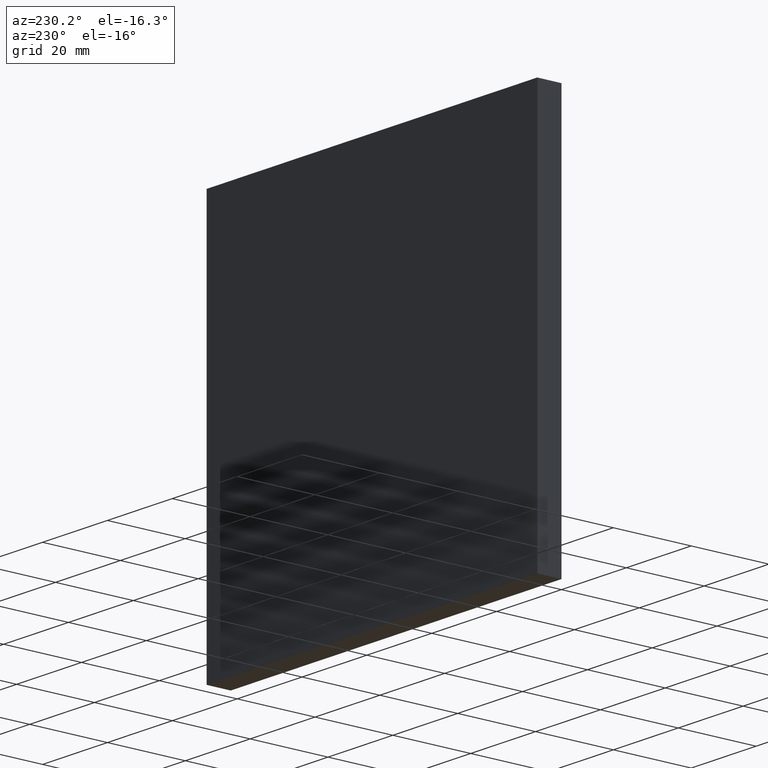
[diagram: clean part render]
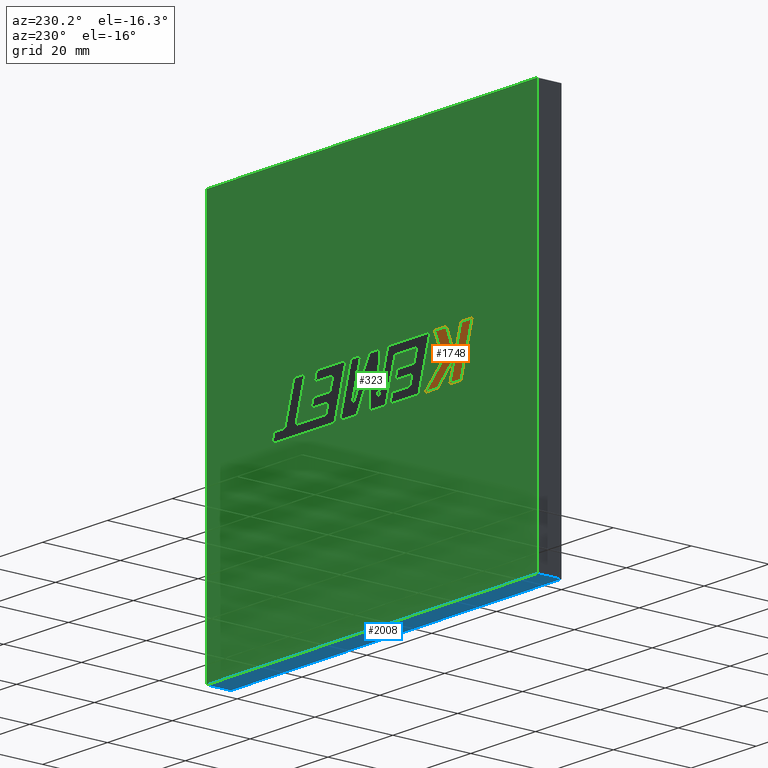
[diagram: same view with three faces highlighted in distinct colors, each labeled with its STEP entity id]
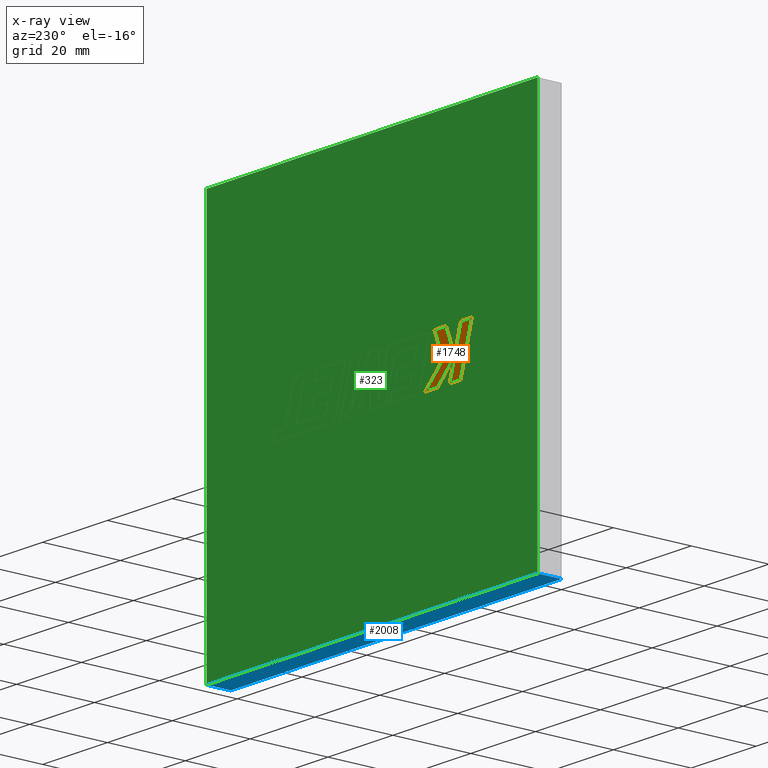
[diagram: x-ray of the same camera — body ghosted, the three highlighted faces saturated]
A machine part, auxiliary view with three faces highlighted in distinct colors.
The next image is the same camera in x-ray (body ghosted, the three faces saturated) — at least one of them is partly hidden behind the body in this view.
Their STEP definitions:

[orange] entity #1748 — the highlighted planar face has unit normal (0, -1, 0).
#10 = LINE ( 'NONE', #1301, #1926 ) ;
#30 = DIRECTION ( 'NONE',  ( -0.2762033010252004095, 0.000000000000000000, 0.9610992334315862085 ) ) ;
#41 = VERTEX_POINT ( 'NONE', #2017 ) ;
#48 = DIRECTION ( 'NONE',  ( -0.7059037656364540725, 0.000000000000000000, 0.7083077534943933440 ) ) ;
#52 = ORIENTED_EDGE ( 'NONE', *, *, #1530, .T. ) ;
#59 = LINE ( 'NONE', #225, #1960 ) ;
#90 = CARTESIAN_POINT ( 'NONE',  ( 28.05290591878565110, 6.204999999999999183, -44.88000000000000256 ) ) ;
#94 = VERTEX_POINT ( 'NONE', #898 ) ;
#100 = ORIENTED_EDGE ( 'NONE', *, *, #146, .T. ) ;
#107 = VECTOR ( 'NONE', #1724, 1000.000000000000000 ) ;
#145 = CARTESIAN_POINT ( 'NONE',  ( 23.53380719853199565, 6.204999999999999183, -44.88000000000000256 ) ) ;
#146 = EDGE_CURVE ( 'NONE', #374, #1560, #217, .T. ) ;
#159 = CARTESIAN_POINT ( 'NONE',  ( 25.41641557051689304, 6.204999999999999183, -51.44829235134181289 ) ) ;
#162 = CARTESIAN_POINT ( 'NONE',  ( 20.09399999999999764, 6.204999999999999183, -44.88000000000000256 ) ) ;
#217 = LINE ( 'NONE', #554, #752 ) ;
#225 = CARTESIAN_POINT ( 'NONE',  ( 25.53614068913826785, 6.204999999999999183, -51.81831834092456290 ) ) ;
#267 = LINE ( 'NONE', #1544, #1247 ) ;
#268 = VERTEX_POINT ( 'NONE', #1861 ) ;
#319 = CARTESIAN_POINT ( 'NONE',  ( 31.73359783930099098, 6.204999999999999183, -44.88000000000000256 ) ) ;
#366 = DIRECTION ( 'NONE',  ( 0.000000000000000000, 0.000000000000000000, -1.000000000000000000 ) ) ;
#374 = VERTEX_POINT ( 'NONE', #1927 ) ;
#474 = ORIENTED_EDGE ( 'NONE', *, *, #2065, .T. ) ;
#490 = LINE ( 'NONE', #1585, #1817 ) ;
#554 = CARTESIAN_POINT ( 'NONE',  ( 29.01100104555485615, 6.204999999999999183, -51.44829235134198342 ) ) ;
#583 = DIRECTION ( 'NONE',  ( 0.2755265765475171658, 0.000000000000000000, -0.9612934544747536725 ) ) ;
#588 = EDGE_CURVE ( 'NONE', #268, #961, #955, .T. ) ;
#589 = CARTESIAN_POINT ( 'NONE',  ( 25.53614068913826785, 6.204999999999999183, -51.81831834092456290 ) ) ;
#624 = CARTESIAN_POINT ( 'NONE',  ( 23.57044198812232594, 6.204999999999999183, -56.97690730506114676 ) ) ;
#647 = LINE ( 'NONE', #624, #1730 ) ;
#667 = VERTEX_POINT ( 'NONE', #162 ) ;
#671 = VECTOR ( 'NONE', #30, 1000.000000000000114 ) ;
#680 = DIRECTION ( 'NONE',  ( -0.3829140317376942271, -0.000000000000000000, -0.9237839814038690811 ) ) ;
#752 = VECTOR ( 'NONE', #680, 1000.000000000000114 ) ;
#784 = EDGE_CURVE ( 'NONE', #1545, #667, #1935, .T. ) ;
#789 = DIRECTION ( 'NONE',  ( -1.000000000000000000, -0.000000000000000000, -0.000000000000000000 ) ) ;
#821 = ORIENTED_EDGE ( 'NONE', *, *, #1829, .T. ) ;
#825 = DIRECTION ( 'NONE',  ( 0.000000000000000000, -1.000000000000000000, 0.000000000000000000 ) ) ;
#898 = CARTESIAN_POINT ( 'NONE',  ( 34.65820087879249911, 6.204999999999999183, -56.97690730506114676 ) ) ;
#915 = LINE ( 'NONE', #90, #1922 ) ;
#955 = LINE ( 'NONE', #1229, #1130 ) ;
#956 = DIRECTION ( 'NONE',  ( -1.000000000000000000, -0.000000000000000000, -0.000000000000000000 ) ) ;
#961 = VERTEX_POINT ( 'NONE', #159 ) ;
#1081 = ORIENTED_EDGE ( 'NONE', *, *, #2031, .T. ) ;
#1103 = CARTESIAN_POINT ( 'NONE',  ( 23.57044198812232594, 6.204999999999999183, -56.97690730506114676 ) ) ;
#1130 = VECTOR ( 'NONE', #583, 1000.000000000000114 ) ;
#1137 = ORIENTED_EDGE ( 'NONE', *, *, #1711, .T. ) ;
#1217 = AXIS2_PLACEMENT_3D ( 'NONE', #1611, #825, #366 ) ;
#1222 = DIRECTION ( 'NONE',  ( 0.2755520632520634394, 0.000000000000000000, -0.9612861490927302466 ) ) ;
#1229 = CARTESIAN_POINT ( 'NONE',  ( 25.41641557051689304, 6.204999999999999183, -51.44829235134181289 ) ) ;
#1247 = VECTOR ( 'NONE', #1222, 1000.000000000000114 ) ;
#1256 = EDGE_LOOP ( 'NONE', ( #1687, #1348, #1267, #821, #52, #100, #474, #1081, #1137, #1879, #1338 ) ) ;
#1267 = ORIENTED_EDGE ( 'NONE', *, *, #588, .T. ) ;
#1301 = CARTESIAN_POINT ( 'NONE',  ( 30.67722146538236672, 6.204999999999999183, -56.97690730506114676 ) ) ;
#1338 = ORIENTED_EDGE ( 'NONE', *, *, #1552, .T. ) ;
#1348 = ORIENTED_EDGE ( 'NONE', *, *, #1575, .T. ) ;
#1411 = VERTEX_POINT ( 'NONE', #1672 ) ;
#1418 = CARTESIAN_POINT ( 'NONE',  ( 29.01100104555485615, 6.204999999999999183, -51.44829235134198342 ) ) ;
#1502 = VERTEX_POINT ( 'NONE', #589 ) ;
#1530 = EDGE_CURVE ( 'NONE', #1411, #374, #1566, .T. ) ;
#1544 = CARTESIAN_POINT ( 'NONE',  ( 27.01484693480585264, 6.204999999999999183, -56.97690730506114676 ) ) ;
#1545 = VERTEX_POINT ( 'NONE', #1103 ) ;
#1552 = EDGE_CURVE ( 'NONE', #41, #1545, #647, .T. ) ;
#1560 = VERTEX_POINT ( 'NONE', #1418 ) ;
#1566 = LINE ( 'NONE', #319, #107 ) ;
#1575 = EDGE_CURVE ( 'NONE', #667, #268, #1928, .T. ) ;
#1579 = DIRECTION ( 'NONE',  ( 1.000000000000000000, 0.000000000000000000, 0.000000000000000000 ) ) ;
#1585 = CARTESIAN_POINT ( 'NONE',  ( 34.65820087879249911, 6.204999999999999183, -56.97690730506114676 ) ) ;
#1605 = CARTESIAN_POINT ( 'NONE',  ( 20.09399999999999764, 6.204999999999999183, -44.88000000000000256 ) ) ;
#1611 = CARTESIAN_POINT ( 'NONE',  ( -0.02553512749511530067, 6.204999999999999183, 0.08865145588189682346 ) ) ;
#1627 = VECTOR ( 'NONE', #1579, 1000.000000000000000 ) ;
#1672 = CARTESIAN_POINT ( 'NONE',  ( 28.05290591878565110, 6.204999999999999183, -44.88000000000000256 ) ) ;
#1681 = DIRECTION ( 'NONE',  ( 0.3725077383644757600, 0.000000000000000000, 0.9280290862136720831 ) ) ;
#1687 = ORIENTED_EDGE ( 'NONE', *, *, #784, .T. ) ;
#1711 = EDGE_CURVE ( 'NONE', #1834, #1502, #59, .T. ) ;
#1724 = DIRECTION ( 'NONE',  ( 1.000000000000000000, 0.000000000000000000, 0.000000000000000000 ) ) ;
#1730 = VECTOR ( 'NONE', #789, 1000.000000000000000 ) ;
#1748 = ADVANCED_FACE ( 'NONE', ( #1963 ), #1797, .F. ) ;
#1782 = DIRECTION ( 'NONE',  ( 0.7145695586381809461, 0.000000000000000000, -0.6995643972270425559 ) ) ;
#1797 = PLANE ( 'NONE',  #1217 ) ;
#1817 = VECTOR ( 'NONE', #1782, 1000.000000000000114 ) ;
#1827 = EDGE_CURVE ( 'NONE', #1502, #41, #267, .T. ) ;
#1829 = EDGE_CURVE ( 'NONE', #961, #1411, #915, .T. ) ;
#1834 = VERTEX_POINT ( 'NONE', #1870 ) ;
#1861 = CARTESIAN_POINT ( 'NONE',  ( 23.53380719853199565, 6.204999999999999183, -44.88000000000000256 ) ) ;
#1870 = CARTESIAN_POINT ( 'NONE',  ( 30.67722146538236672, 6.204999999999999183, -56.97690730506114676 ) ) ;
#1879 = ORIENTED_EDGE ( 'NONE', *, *, #1827, .T. ) ;
#1922 = VECTOR ( 'NONE', #1681, 999.9999999999998863 ) ;
#1926 = VECTOR ( 'NONE', #956, 1000.000000000000000 ) ;
#1927 = CARTESIAN_POINT ( 'NONE',  ( 31.73359783930099098, 6.204999999999999183, -44.88000000000000256 ) ) ;
#1928 = LINE ( 'NONE', #145, #1627 ) ;
#1935 = LINE ( 'NONE', #1605, #671 ) ;
#1960 = VECTOR ( 'NONE', #48, 999.9999999999998863 ) ;
#1963 = FACE_OUTER_BOUND ( 'NONE', #1256, .T. ) ;
#2017 = CARTESIAN_POINT ( 'NONE',  ( 27.01484693480585264, 6.204999999999999183, -56.97690730506114676 ) ) ;
#2031 = EDGE_CURVE ( 'NONE', #94, #1834, #10, .T. ) ;
#2065 = EDGE_CURVE ( 'NONE', #1560, #94, #490, .T. ) ;

[blue] entity #2008 — the highlighted planar face has unit normal (0, 0, 1).
#23 = CARTESIAN_POINT ( 'NONE',  ( 101.9999999999999858, 6.200000000000000178, -102.0000000000000000 ) ) ;
#184 = CARTESIAN_POINT ( 'NONE',  ( 101.9999999999999858, 6.200000000000000178, -102.0000000000000000 ) ) ;
#210 = CARTESIAN_POINT ( 'NONE',  ( 0.000000000000000000, 0.000000000000000000, -102.0000000000000000 ) ) ;
#218 = ORIENTED_EDGE ( 'NONE', *, *, #239, .F. ) ;
#239 = EDGE_CURVE ( 'NONE', #575, #840, #780, .T. ) ;
#253 = ORIENTED_EDGE ( 'NONE', *, *, #413, .T. ) ;
#257 = CARTESIAN_POINT ( 'NONE',  ( 0.000000000000000000, 6.200000000000000178, -102.0000000000000000 ) ) ;
#302 = PLANE ( 'NONE',  #557 ) ;
#390 = CARTESIAN_POINT ( 'NONE',  ( 0.000000000000000000, 6.200000000000000178, -102.0000000000000000 ) ) ;
#413 = EDGE_CURVE ( 'NONE', #1204, #1592, #1572, .T. ) ;
#460 = DIRECTION ( 'NONE',  ( 0.000000000000000000, 0.000000000000000000, 1.000000000000000000 ) ) ;
#469 = DIRECTION ( 'NONE',  ( -0.000000000000000000, -1.000000000000000000, -0.000000000000000000 ) ) ;
#544 = EDGE_LOOP ( 'NONE', ( #1176, #218, #1049, #253 ) ) ;
#557 = AXIS2_PLACEMENT_3D ( 'NONE', #257, #460, #707 ) ;
#575 = VERTEX_POINT ( 'NONE', #390 ) ;
#628 = CARTESIAN_POINT ( 'NONE',  ( 101.9999999999999858, 0.000000000000000000, -102.0000000000000000 ) ) ;
#707 = DIRECTION ( 'NONE',  ( 1.000000000000000000, 0.000000000000000000, -0.000000000000000000 ) ) ;
#777 = VECTOR ( 'NONE', #1972, 1000.000000000000000 ) ;
#780 = LINE ( 'NONE', #1534, #910 ) ;
#840 = VERTEX_POINT ( 'NONE', #210 ) ;
#910 = VECTOR ( 'NONE', #1558, 1000.000000000000000 ) ;
#999 = VECTOR ( 'NONE', #1177, 1000.000000000000000 ) ;
#1049 = ORIENTED_EDGE ( 'NONE', *, *, #1624, .F. ) ;
#1092 = LINE ( 'NONE', #1731, #999 ) ;
#1163 = LINE ( 'NONE', #1452, #777 ) ;
#1176 = ORIENTED_EDGE ( 'NONE', *, *, #1684, .T. ) ;
#1177 = DIRECTION ( 'NONE',  ( -1.000000000000000000, -0.000000000000000000, -0.000000000000000000 ) ) ;
#1204 = VERTEX_POINT ( 'NONE', #184 ) ;
#1452 = CARTESIAN_POINT ( 'NONE',  ( 0.000000000000000000, 0.000000000000000000, -102.0000000000000000 ) ) ;
#1534 = CARTESIAN_POINT ( 'NONE',  ( 0.000000000000000000, 6.200000000000000178, -102.0000000000000000 ) ) ;
#1558 = DIRECTION ( 'NONE',  ( -0.000000000000000000, -1.000000000000000000, -0.000000000000000000 ) ) ;
#1572 = LINE ( 'NONE', #23, #1667 ) ;
#1592 = VERTEX_POINT ( 'NONE', #628 ) ;
#1624 = EDGE_CURVE ( 'NONE', #1204, #575, #1092, .T. ) ;
#1665 = FACE_OUTER_BOUND ( 'NONE', #544, .T. ) ;
#1667 = VECTOR ( 'NONE', #469, 1000.000000000000000 ) ;
#1684 = EDGE_CURVE ( 'NONE', #1592, #840, #1163, .T. ) ;
#1731 = CARTESIAN_POINT ( 'NONE',  ( 0.000000000000000000, 6.200000000000000178, -102.0000000000000000 ) ) ;
#1972 = DIRECTION ( 'NONE',  ( -1.000000000000000000, -0.000000000000000000, -0.000000000000000000 ) ) ;
#2008 = ADVANCED_FACE ( 'NONE', ( #1665 ), #302, .F. ) ;

[green] entity #323 — the highlighted planar face has unit normal (0, -1, 0).
#12 = EDGE_CURVE ( 'NONE', #2062, #1204, #255, .T. ) ;
#35 = DIRECTION ( 'NONE',  ( 1.000000000000000000, 0.000000000000000000, 0.000000000000000000 ) ) ;
#109 = DIRECTION ( 'NONE',  ( 0.000000000000000000, 0.000000000000000000, -1.000000000000000000 ) ) ;
#127 = ORIENTED_EDGE ( 'NONE', *, *, #1455, .T. ) ;
#174 = VERTEX_POINT ( 'NONE', #1005 ) ;
#184 = CARTESIAN_POINT ( 'NONE',  ( 101.9999999999999858, 6.200000000000000178, -102.0000000000000000 ) ) ;
#188 = DIRECTION ( 'NONE',  ( 0.000000000000000000, -0.000000000000000000, -1.000000000000000000 ) ) ;
#238 = VECTOR ( 'NONE', #109, 1000.000000000000000 ) ;
#255 = LINE ( 'NONE', #1057, #238 ) ;
#281 = DIRECTION ( 'NONE',  ( -0.000000000000000000, -0.000000000000000000, 1.000000000000000000 ) ) ;
#323 = ADVANCED_FACE ( 'NONE', ( #906 ), #1378, .F. ) ;
#347 = CARTESIAN_POINT ( 'NONE',  ( 0.000000000000000000, 6.200000000000000178, 0.000000000000000000 ) ) ;
#350 = VECTOR ( 'NONE', #35, 1000.000000000000000 ) ;
#390 = CARTESIAN_POINT ( 'NONE',  ( 0.000000000000000000, 6.200000000000000178, -102.0000000000000000 ) ) ;
#543 = AXIS2_PLACEMENT_3D ( 'NONE', #1429, #981, #188 ) ;
#575 = VERTEX_POINT ( 'NONE', #390 ) ;
#619 = LINE ( 'NONE', #1379, #1591 ) ;
#750 = EDGE_LOOP ( 'NONE', ( #127, #1240, #1652, #1565 ) ) ;
#906 = FACE_OUTER_BOUND ( 'NONE', #750, .T. ) ;
#981 = DIRECTION ( 'NONE',  ( 0.000000000000000000, -1.000000000000000000, 0.000000000000000000 ) ) ;
#999 = VECTOR ( 'NONE', #1177, 1000.000000000000000 ) ;
#1005 = CARTESIAN_POINT ( 'NONE',  ( 0.000000000000000000, 6.200000000000000178, 0.000000000000000000 ) ) ;
#1057 = CARTESIAN_POINT ( 'NONE',  ( 101.9999999999999858, 6.200000000000000178, 0.000000000000000000 ) ) ;
#1092 = LINE ( 'NONE', #1731, #999 ) ;
#1177 = DIRECTION ( 'NONE',  ( -1.000000000000000000, -0.000000000000000000, -0.000000000000000000 ) ) ;
#1204 = VERTEX_POINT ( 'NONE', #184 ) ;
#1240 = ORIENTED_EDGE ( 'NONE', *, *, #1755, .T. ) ;
#1378 = PLANE ( 'NONE',  #543 ) ;
#1379 = CARTESIAN_POINT ( 'NONE',  ( 0.000000000000000000, 6.200000000000000178, 0.000000000000000000 ) ) ;
#1429 = CARTESIAN_POINT ( 'NONE',  ( 0.000000000000000000, 6.200000000000000178, 0.000000000000000000 ) ) ;
#1455 = EDGE_CURVE ( 'NONE', #575, #174, #619, .T. ) ;
#1565 = ORIENTED_EDGE ( 'NONE', *, *, #1624, .T. ) ;
#1591 = VECTOR ( 'NONE', #281, 1000.000000000000000 ) ;
#1624 = EDGE_CURVE ( 'NONE', #1204, #575, #1092, .T. ) ;
#1652 = ORIENTED_EDGE ( 'NONE', *, *, #12, .T. ) ;
#1731 = CARTESIAN_POINT ( 'NONE',  ( 0.000000000000000000, 6.200000000000000178, -102.0000000000000000 ) ) ;
#1755 = EDGE_CURVE ( 'NONE', #174, #2062, #1774, .T. ) ;
#1774 = LINE ( 'NONE', #347, #350 ) ;
#1925 = CARTESIAN_POINT ( 'NONE',  ( 101.9999999999999858, 6.200000000000000178, 0.000000000000000000 ) ) ;
#2062 = VERTEX_POINT ( 'NONE', #1925 ) ;